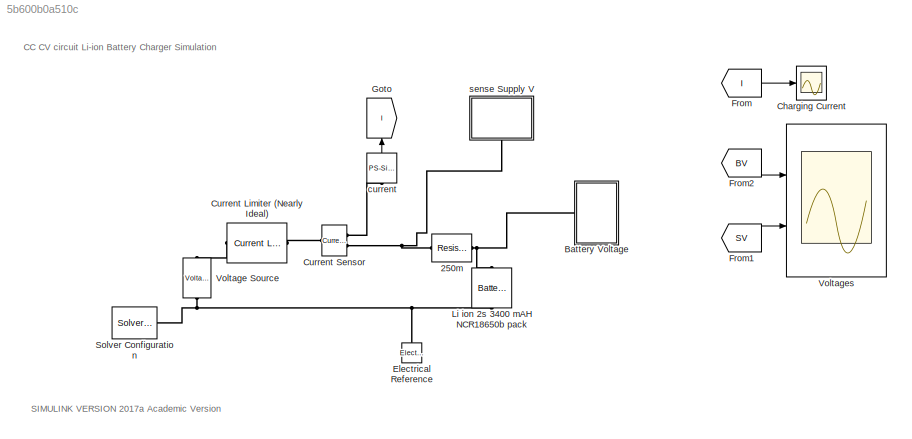
MODEL slx_5b600b0a510c
KIND model
CONFIG AbsTol = auto
CONFIG EnableMultiTasking = off
CONFIG FixedStep = auto
CONFIG MaxStep = auto
CONFIG MinStep = auto
CONFIG RelTol = 1e-3
CONFIG SampleTimeConstraint = Unconstrained
CONFIG Solver = VariableStepAuto
CONFIG SolverName = VariableStepAuto
CONFIG StartTime = 0.0
CONFIG StopTime = 10000
BLOCK [Reference] 250m  REF=elec_lib/Passive Devices/Resistor
  Ports = [0, 0, 0, 0, 0, 1, 1]
  SourceBlock = elec_lib/Passive Devices/Resistor
  SourceProductBaseCode = SN
  SourceProductName = Simscape Electronics
  SourceType = Resistor
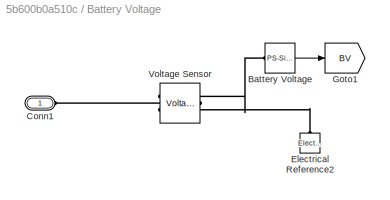
BLOCK [SubSystem] Battery Voltage
  Ports = [0, 0, 0, 0, 0, 1]
  RequestExecContextInheritance = off
  Variant = off
BLOCK [Reference] Battery Voltage/Battery Voltage  REF=nesl_utility/PS-Simulink
Converter
  Ports = [0, 1, 0, 0, 0, 1]
  SourceBlock = nesl_utility/PS-Simulink\nConverter
  SourceProductBaseCode = SS
  SourceProductName = Simscape
  SourceType = PS-Simulink\nConverter
BLOCK [PMIOPort] Battery Voltage/Conn1
  Port = 1
  Side = Left
BLOCK [Reference] Battery Voltage/Electrical Reference2  REF=fl_lib/Electrical/Electrical Elements/Electrical Reference
  Ports = [0, 0, 0, 0, 0, 1]
  SourceBlock = fl_lib/Electrical/Electrical Elements/Electrical Reference
  SourceProductBaseCode = SS
  SourceProductName = Simscape
  SourceType = Electrical Reference
BLOCK [Goto] Battery Voltage/Goto1
  GotoTag = BV
  TagVisibility = global
BLOCK [Reference] Battery Voltage/Voltage Sensor  REF=fl_lib/Electrical/Electrical Sensors/Voltage Sensor
  Ports = [0, 0, 0, 0, 0, 1, 2]
  SourceBlock = fl_lib/Electrical/Electrical Sensors/Voltage Sensor
  SourceProductBaseCode = SS
  SourceProductName = Simscape
  SourceType = Voltage Sensor
BLOCK [Scope] Charging Current
  NumInputPorts = 1
  Ports = [1]
  ScopeSpecificationString = Simulink.scopes.TimeScopeBlockCfg('CurrentConfiguration', extmgr.ConfigurationSet(extmgr.Configuration('Core','General UI',true),extmgr.Configuration('Core','Source UI',true),extmgr.Configuration('Sources','WiredSimulink',true,'DataLoggingVariableName','ScopeData1'),extmgr.Configuration('Visuals','Time Domain',true,'SerializedDisplays',{struct('MinYLimReal','-0.12606','MaxYLimReal','1.13453','YLab...<+1447ch>
BLOCK [Reference] Current Limiter (Nearly Ideal)  REF=elec_lib/Semiconductor
Devices/Current Limiter
  Ports = [0, 0, 0, 0, 0, 1, 1]
  SourceBlock = elec_lib/Semiconductor\nDevices/Current Limiter
  SourceProductBaseCode = SN
  SourceProductName = Simscape Electronics
  SourceType = Current Limiter
BLOCK [Reference] Current Sensor  REF=fl_lib/Electrical/Electrical Sensors/Current Sensor
  Ports = [0, 0, 0, 0, 0, 1, 2]
  SourceBlock = fl_lib/Electrical/Electrical Sensors/Current Sensor
  SourceProductBaseCode = SS
  SourceProductName = Simscape
  SourceType = Current Sensor
BLOCK [Reference] Electrical Reference  REF=fl_lib/Electrical/Electrical Elements/Electrical Reference
  Ports = [0, 0, 0, 0, 0, 1]
  SourceBlock = fl_lib/Electrical/Electrical Elements/Electrical Reference
  SourceProductBaseCode = SS
  SourceProductName = Simscape
  SourceType = Electrical Reference
BLOCK [From] From
  GotoTag = I
BLOCK [From] From1
  GotoTag = SV
  TagVisibility = global
BLOCK [From] From2
  GotoTag = BV
  TagVisibility = global
BLOCK [Goto] Goto
  GotoTag = I
BLOCK [Reference] Li ion 2s 3400 mAH NCR18650b pack  REF=pe_lib/Sources/Battery
  Ports = [0, 0, 0, 0, 0, 1, 1]
  SourceBlock = pe_lib/Sources/Battery
  SourceProductBaseCode = PS
  SourceProductName = Simscape Power Systems
  SourceType = Battery
BLOCK [Reference] Solver Configuration  REF=nesl_utility/Solver
Configuration
  Ports = [0, 0, 0, 0, 0, 0, 1]
  SourceBlock = nesl_utility/Solver\nConfiguration
  SourceProductBaseCode = SS
  SourceProductName = Simscape
  SourceType = Solver\nConfiguration
BLOCK [Reference] Voltage Source  REF=elec_lib/Sources/Voltage Source
  Ports = [0, 0, 0, 0, 0, 1, 1]
  SourceBlock = elec_lib/Sources/Voltage Source
  SourceProductBaseCode = SN
  SourceProductName = Simscape Electronics
  SourceType = Voltage Source
BLOCK [Scope] Voltages
  NumInputPorts = 2
  Ports = [2]
  ScopeSpecificationString = Simulink.scopes.TimeScopeBlockCfg('CurrentConfiguration', extmgr.ConfigurationSet(extmgr.Configuration('Core','General UI',true),extmgr.Configuration('Core','Source UI',true),extmgr.Configuration('Sources','WiredSimulink',true),extmgr.Configuration('Visuals','Time Domain',true,'SerializedDisplays',{struct('MinYLimReal','6.82504','MaxYLimReal','8.57466','YLabelReal','','MinYLimMag','6.82504','MaxYL...<+1400ch>
BLOCK [Reference] current  REF=nesl_utility/PS-Simulink
Converter
  Ports = [0, 1, 0, 0, 0, 1]
  SourceBlock = nesl_utility/PS-Simulink\nConverter
  SourceProductBaseCode = SS
  SourceProductName = Simscape
  SourceType = PS-Simulink\nConverter
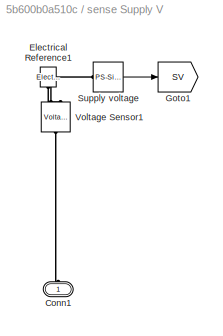
BLOCK [SubSystem] sense Supply V
  Ports = [0, 0, 0, 0, 0, 1]
  RequestExecContextInheritance = off
  Variant = off
BLOCK [PMIOPort] sense Supply V/Conn1
  Port = 1
  Side = Left
BLOCK [Reference] sense Supply V/Electrical Reference1  REF=fl_lib/Electrical/Electrical Elements/Electrical Reference
  Ports = [0, 0, 0, 0, 0, 1]
  SourceBlock = fl_lib/Electrical/Electrical Elements/Electrical Reference
  SourceProductBaseCode = SS
  SourceProductName = Simscape
  SourceType = Electrical Reference
BLOCK [Goto] sense Supply V/Goto1
  GotoTag = SV
  TagVisibility = global
BLOCK [Reference] sense Supply V/Supply voltage  REF=nesl_utility/PS-Simulink
Converter
  Ports = [0, 1, 0, 0, 0, 1]
  SourceBlock = nesl_utility/PS-Simulink\nConverter
  SourceProductBaseCode = SS
  SourceProductName = Simscape
  SourceType = PS-Simulink\nConverter
BLOCK [Reference] sense Supply V/Voltage Sensor1  REF=fl_lib/Electrical/Electrical Sensors/Voltage Sensor
  Ports = [0, 0, 0, 0, 0, 1, 2]
  SourceBlock = fl_lib/Electrical/Electrical Sensors/Voltage Sensor
  SourceProductBaseCode = SS
  SourceProductName = Simscape
  SourceType = Voltage Sensor
ANNOTATION (root): CC CV circuit Li-ion Battery Charger Simulation
ANNOTATION (root): SIMULINK VERSION 2017a Academic Version
LINE Battery Voltage/Battery Voltage:1 -> Battery Voltage/Goto1:1
LINE From1:1 -> Voltages:2
LINE From2:1 -> Voltages:1
LINE From:1 -> Charging Current:1
LINE current:1 -> Goto:1
LINE sense Supply V/Supply voltage:1 -> sense Supply V/Goto1:1
PNET net1: 250m:LConn1 -- Current Sensor:RConn2 -- sense Supply V:LConn1
PNET net2: 250m:RConn1 -- Battery Voltage:LConn1 -- Li ion 2s 3400 mAH NCR18650b pack:LConn1
PLINE Battery Voltage/Battery Voltage:LConn1 -- Battery Voltage/Voltage Sensor:RConn1
PLINE Battery Voltage/Conn1:RConn1 -- Battery Voltage/Voltage Sensor:LConn1
PLINE Battery Voltage/Electrical Reference2:LConn1 -- Battery Voltage/Voltage Sensor:RConn2
PLINE Current Limiter (Nearly Ideal):LConn1 -- Voltage Source:LConn1
PLINE Current Limiter (Nearly Ideal):RConn1 -- Current Sensor:LConn1
PLINE Current Sensor:RConn1 -- current:LConn1
PNET net3: Electrical Reference:LConn1 -- Li ion 2s 3400 mAH NCR18650b pack:RConn1 -- Solver Configuration:RConn1 -- Voltage Source:RConn1
PLINE sense Supply V/Conn1:RConn1 -- sense Supply V/Voltage Sensor1:LConn1
PLINE sense Supply V/Electrical Reference1:LConn1 -- sense Supply V/Voltage Sensor1:RConn2
PLINE sense Supply V/Supply voltage:LConn1 -- sense Supply V/Voltage Sensor1:RConn1
note: PNET lines group multi-terminal physical nets as a canonical sorted terminal list (undirected conserving connections); 2-terminal nets keep the pairwise PLINE form
